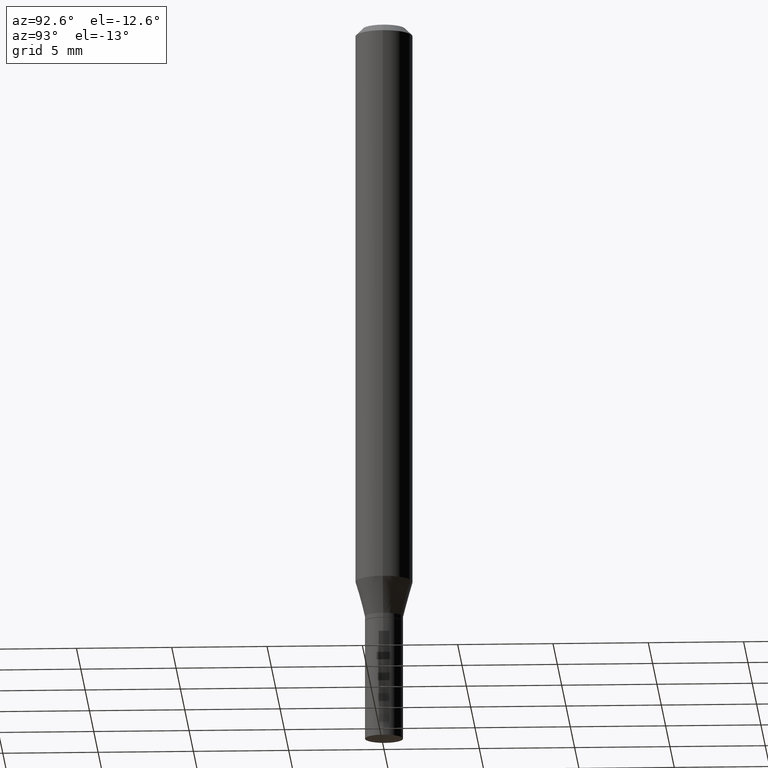
[diagram: clean part render]
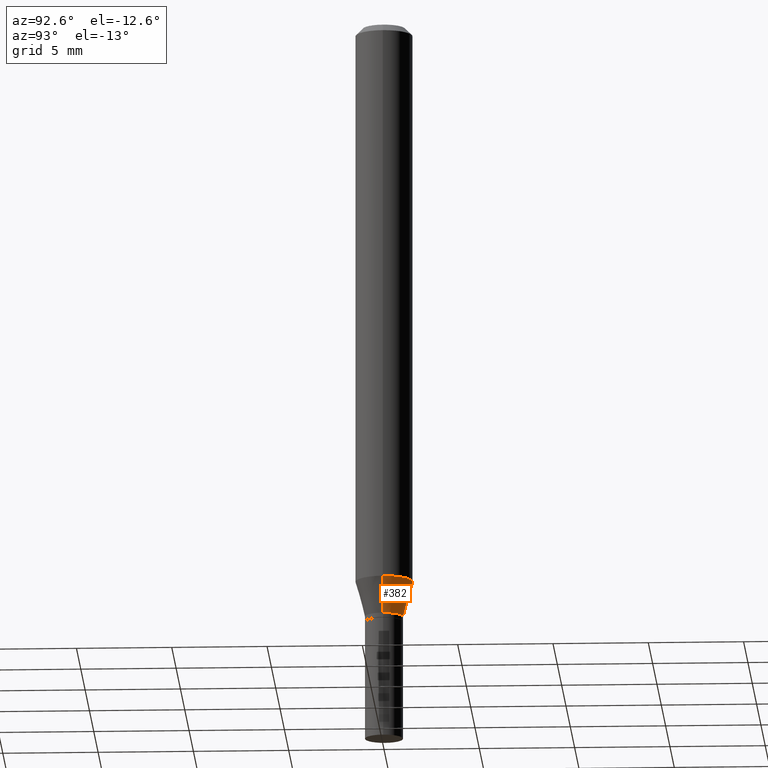
[diagram: same view with one face highlighted and labeled with its STEP entity id]
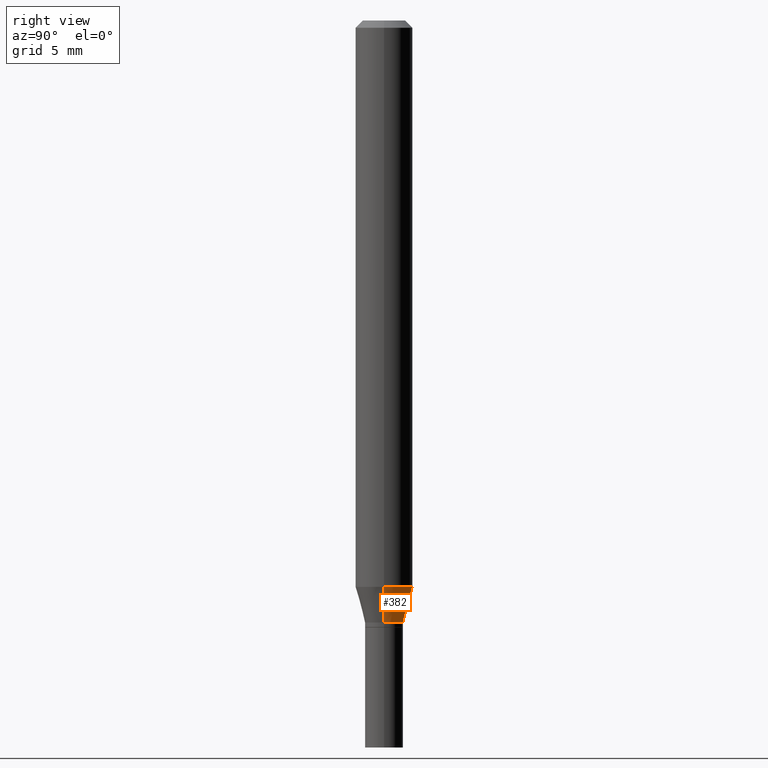
[diagram: same view with one face highlighted and labeled with its STEP entity id]
A machine part, auxiliary view. The second image highlights one B-rep face of the part: STEP entity #382.
A second angle (right view) of the same face is appended — the face is thin or edge-on in the first view.
In plain terms, the highlighted conical surface has half-angle 15 deg.
Its self-contained STEP definition (entity closure, byte-faithful):
#11 = CARTESIAN_POINT ( 'NONE',  ( 0.03934999999999992670, -4.611199404210140965E-15, -1.241999999999999993 ) ) ;
#35 = CIRCLE ( 'NONE', #102, 0.05904999999999999832 ) ;
#39 = DIRECTION ( 'NONE',  ( 1.000000000000000000, -6.982962677686270655E-15, 0.000000000000000000 ) ) ;
#52 = CARTESIAN_POINT ( 'NONE',  ( -0.03934999999999992670, -3.858483497209341928E-15, -1.241999999999999993 ) ) ;
#67 = EDGE_CURVE ( 'NONE', #278, #376, #394, .T. ) ;
#74 = DIRECTION ( 'NONE',  ( -2.445468806185136597E-29, 3.491481338843145583E-15, 1.000000000000000000 ) ) ;
#93 = EDGE_CURVE ( 'NONE', #422, #278, #402, .T. ) ;
#102 = AXIS2_PLACEMENT_3D ( 'NONE', #299, #444, #378 ) ;
#113 = DIRECTION ( 'NONE',  ( -0.2588190451025216832, 5.211531920934551831E-15, 0.9659258262890679791 ) ) ;
#119 = EDGE_CURVE ( 'NONE', #422, #315, #163, .T. ) ;
#135 = ORIENTED_EDGE ( 'NONE', *, *, #119, .F. ) ;
#145 = CARTESIAN_POINT ( 'NONE',  ( 3.037272257281939846E-29, -4.336419822843186836E-15, -1.241999999999999993 ) ) ;
#148 = EDGE_CURVE ( 'NONE', #315, #376, #35, .T. ) ;
#162 = CARTESIAN_POINT ( 'NONE',  ( -0.05904999999999999832, -3.660145738097095626E-15, -1.168478599090893244 ) ) ;
#163 = LINE ( 'NONE', #11, #182 ) ;
#182 = VECTOR ( 'NONE', #259, 39.37007874015748143 ) ;
#224 = VECTOR ( 'NONE', #113, 39.37007874015748143 ) ;
#250 = AXIS2_PLACEMENT_3D ( 'NONE', #258, #440, #301 ) ;
#252 = CARTESIAN_POINT ( 'NONE',  ( -0.03934999999999992670, -4.056821256321588230E-15, -1.241999999999999993 ) ) ;
#253 = CARTESIAN_POINT ( 'NONE',  ( 0.05904999999999999832, -4.492065169680809250E-15, -1.168478599090893244 ) ) ;
#258 = CARTESIAN_POINT ( 'NONE',  ( 3.037272257281939846E-29, -4.336419822843186836E-15, -1.241999999999999993 ) ) ;
#259 = DIRECTION ( 'NONE',  ( 0.2588190451025216832, 1.565188264969619798E-15, 0.9659258262890679791 ) ) ;
#265 = ORIENTED_EDGE ( 'NONE', *, *, #148, .F. ) ;
#266 = FACE_OUTER_BOUND ( 'NONE', #380, .T. ) ;
#269 = ORIENTED_EDGE ( 'NONE', *, *, #67, .T. ) ;
#278 = VERTEX_POINT ( 'NONE', #52 ) ;
#299 = CARTESIAN_POINT ( 'NONE',  ( 2.857477964771687293E-29, -4.079721223563434330E-15, -1.168478599090893244 ) ) ;
#301 = DIRECTION ( 'NONE',  ( 1.000000000000000000, -6.982962677686270655E-15, 0.000000000000000000 ) ) ;
#315 = VERTEX_POINT ( 'NONE', #253 ) ;
#318 = ORIENTED_EDGE ( 'NONE', *, *, #93, .T. ) ;
#353 = CONICAL_SURFACE ( 'NONE', #250, 0.03934999999999992670, 0.2617993877991502960 ) ;
#376 = VERTEX_POINT ( 'NONE', #162 ) ;
#378 = DIRECTION ( 'NONE',  ( 1.000000000000000000, -6.982962677686273021E-15, 0.000000000000000000 ) ) ;
#380 = EDGE_LOOP ( 'NONE', ( #318, #269, #265, #135 ) ) ;
#382 = ADVANCED_FACE ( 'NONE', ( #266 ), #353, .T. ) ;
#394 = LINE ( 'NONE', #252, #224 ) ;
#402 = CIRCLE ( 'NONE', #424, 0.03934999999999992670 ) ;
#407 = CARTESIAN_POINT ( 'NONE',  ( 0.03934999999999992670, -4.611199404210140965E-15, -1.241999999999999993 ) ) ;
#422 = VERTEX_POINT ( 'NONE', #407 ) ;
#424 = AXIS2_PLACEMENT_3D ( 'NONE', #145, #74, #39 ) ;
#440 = DIRECTION ( 'NONE',  ( -2.445468806185136597E-29, 3.491481338843145583E-15, 1.000000000000000000 ) ) ;
#444 = DIRECTION ( 'NONE',  ( -2.445468806185136597E-29, 3.491481338843145583E-15, 1.000000000000000000 ) ) ;